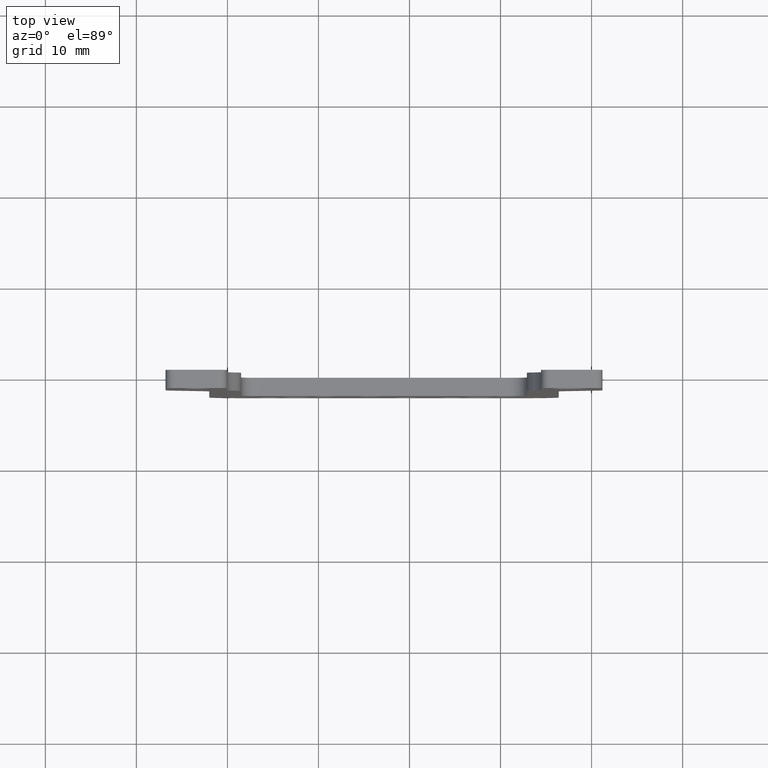
[diagram: clean part render]
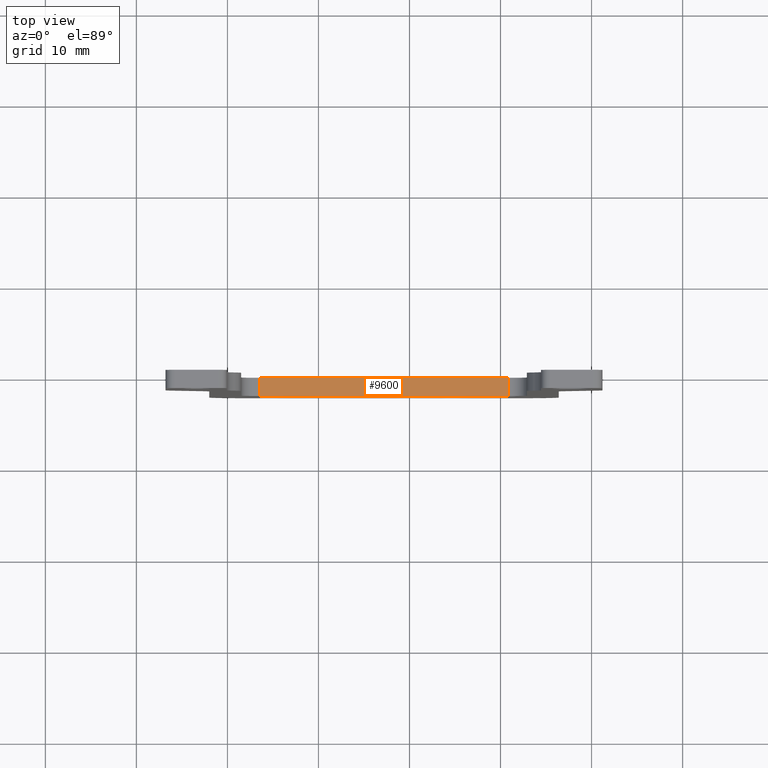
[diagram: same view with one face highlighted and labeled with its STEP entity id]
A machine part, top view. The second image highlights one B-rep face of the part: STEP entity #9600.
In plain terms, the highlighted planar face has unit normal (-0, 0, -1).
Its self-contained STEP definition (entity closure, byte-faithful):
#3250=CARTESIAN_POINT('',(13.7,-1.65696341776185E-13,-46.8999999999996))
;
#3260=VERTEX_POINT('',#3250);
#3290=CARTESIAN_POINT('',(-15.5,-1.65830682704287E-13,-46.8999999999996)
);
#3300=DIRECTION('',(1.,0.,0.));
#3310=VECTOR('',#3300,1.);
#3320=LINE('',#3290,#3310);
#3330=CARTESIAN_POINT('',(-13.7,-1.65696341776185E-13,-46.8999999999996)
);
#3340=VERTEX_POINT('',#3330);
#3350=EDGE_CURVE('',#3340,#3260,#3320,.T.);
#6540=CARTESIAN_POINT('',(-13.7,-2.00000000000017,-46.8999999999996));
#6550=VERTEX_POINT('',#6540);
#6580=CARTESIAN_POINT('',(-15.5,-2.00000000000017,-46.8999999999996));
#6590=DIRECTION('',(1.,0.,0.));
#6600=VECTOR('',#6590,1.);
#6610=LINE('',#6580,#6600);
#6620=CARTESIAN_POINT('',(13.7,-2.00000000000017,-46.8999999999996));
#6630=VERTEX_POINT('',#6620);
#6640=EDGE_CURVE('',#6550,#6630,#6610,.T.);
#9390=CARTESIAN_POINT('',(15.5,-1.65830682704287E-13,-46.8999999999996))
;
#9400=DIRECTION('',(0.,-3.51436609374757E-15,-1.));
#9410=DIRECTION('',(1.,0.,0.));
#9420=AXIS2_PLACEMENT_3D('',#9390,#9400,#9410);
#9430=PLANE('',#9420);
#9440=ORIENTED_EDGE('',*,*,#6640,.T.);
#9450=CARTESIAN_POINT('',(-13.7,-1.65696341776185E-13,-46.8999999999996)
);
#9460=DIRECTION('',(0.,-1.,3.51436609374757E-15));
#9470=VECTOR('',#9460,1.);
#9480=LINE('',#9450,#9470);
#9490=EDGE_CURVE('',#3340,#6550,#9480,.T.);
#9500=ORIENTED_EDGE('',*,*,#9490,.T.);
#9510=ORIENTED_EDGE('',*,*,#3350,.F.);
#9520=CARTESIAN_POINT('',(13.7,-1.65696341776185E-13,-46.8999999999996))
;
#9530=DIRECTION('',(0.,-1.,3.51436609374757E-15));
#9540=VECTOR('',#9530,1.);
#9550=LINE('',#9520,#9540);
#9560=EDGE_CURVE('',#3260,#6630,#9550,.T.);
#9570=ORIENTED_EDGE('',*,*,#9560,.F.);
#9580=EDGE_LOOP('',(#9570,#9510,#9500,#9440));
#9590=FACE_OUTER_BOUND('',#9580,.T.);
#9600=ADVANCED_FACE('',(#9590),#9430,.F.);